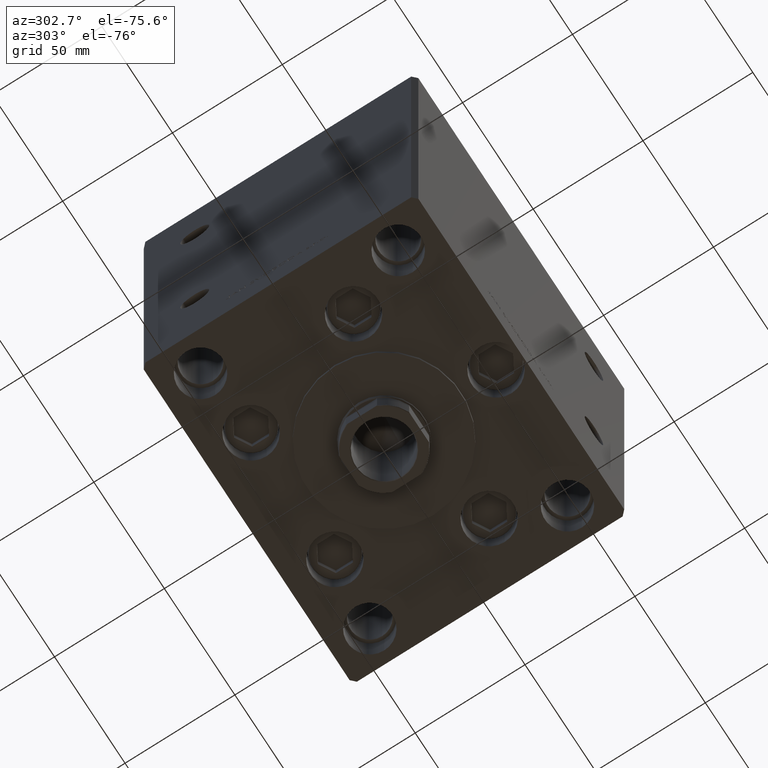
[diagram: clean part render]
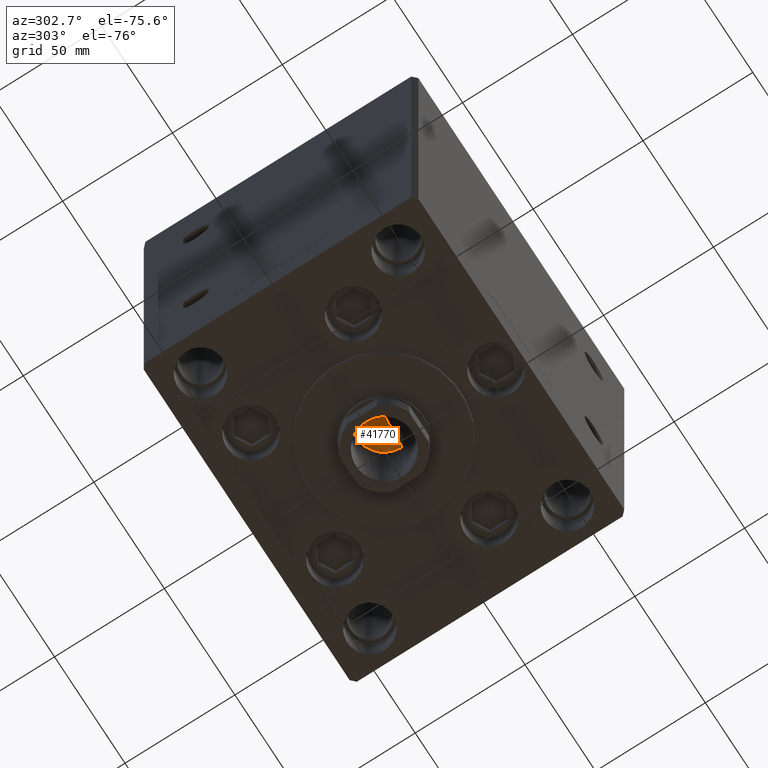
[diagram: same view with one face highlighted and labeled with its STEP entity id]
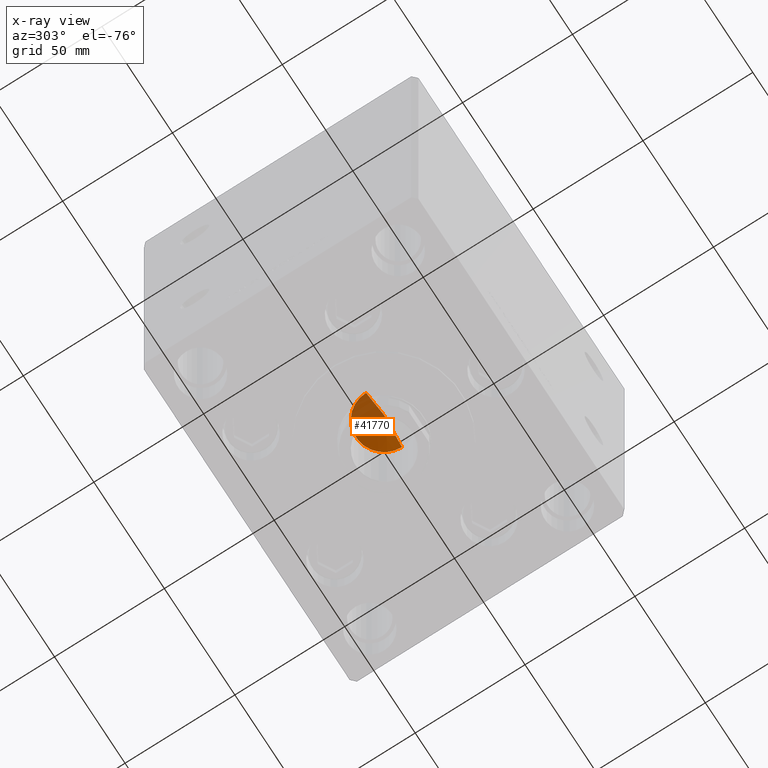
[diagram: x-ray of the same camera — body ghosted, the highlighted face saturated]
A machine part, auxiliary view. The second image highlights one B-rep face of the part: STEP entity #41770.
The next image is the same camera in x-ray: the body ghosted, the highlighted face saturated — about 38% of this face is hidden behind the body in this view.
In plain terms, the highlighted conical surface has half-angle 59 deg.
Its self-contained STEP definition (entity closure, byte-faithful):
#46 = CARTESIAN_POINT ( 'NONE',  ( 12.74999999999999112, 0.000000000000000000, 122.5000000000000142 ) ) ;
#4188 = DIRECTION ( 'NONE',  ( -0.000000000000000000, -0.000000000000000000, 1.000000000000000000 ) ) ;
#4513 = AXIS2_PLACEMENT_3D ( 'NONE', #19553, #46761, #46259 ) ;
#7350 = CARTESIAN_POINT ( 'NONE',  ( -1.307202896762960287E-14, 0.000000000000000000, 114.8390271073986071 ) ) ;
#7768 = CONICAL_SURFACE ( 'NONE', #4513, 12.74999999999999112, 1.029744258676653423 ) ;
#9702 = DIRECTION ( 'NONE',  ( -0.8571673007021117785, 1.049727191138617956E-16, 0.5150380749100550437 ) ) ;
#9959 = CARTESIAN_POINT ( 'NONE',  ( -12.74999999999999112, 1.561424668912874125E-15, 122.5000000000000142 ) ) ;
#12161 = FACE_OUTER_BOUND ( 'NONE', #25935, .T. ) ;
#14951 = VECTOR ( 'NONE', #9702, 1000.000000000000000 ) ;
#14985 = ORIENTED_EDGE ( 'NONE', *, *, #37591, .F. ) ;
#17960 = ORIENTED_EDGE ( 'NONE', *, *, #48334, .T. ) ;
#18431 = CIRCLE ( 'NONE', #46056, 12.74999999999999112 ) ;
#19553 = CARTESIAN_POINT ( 'NONE',  ( 0.000000000000000000, 0.000000000000000000, 122.5000000000000142 ) ) ;
#19782 = CARTESIAN_POINT ( 'NONE',  ( 12.74999999999999112, 0.000000000000000000, 122.5000000000000142 ) ) ;
#21375 = ORIENTED_EDGE ( 'NONE', *, *, #28013, .T. ) ;
#21404 = LINE ( 'NONE', #9959, #14951 ) ;
#22878 = VECTOR ( 'NONE', #23442, 1000.000000000000000 ) ;
#23442 = DIRECTION ( 'NONE',  ( 0.8571673007021117785, 0.000000000000000000, 0.5150380749100550437 ) ) ;
#23762 = CARTESIAN_POINT ( 'NONE',  ( 0.000000000000000000, 0.000000000000000000, 122.5000000000000142 ) ) ;
#24136 = VERTEX_POINT ( 'NONE', #7350 ) ;
#24254 = DIRECTION ( 'NONE',  ( 1.000000000000000000, 0.000000000000000000, 0.000000000000000000 ) ) ;
#25935 = EDGE_LOOP ( 'NONE', ( #14985, #21375, #17960 ) ) ;
#28013 = EDGE_CURVE ( 'NONE', #24136, #40089, #34887, .T. ) ;
#28809 = CARTESIAN_POINT ( 'NONE',  ( -12.74999999999999112, 1.561424668912874125E-15, 122.5000000000000142 ) ) ;
#34887 = LINE ( 'NONE', #46, #22878 ) ;
#37591 = EDGE_CURVE ( 'NONE', #24136, #45604, #21404, .T. ) ;
#40089 = VERTEX_POINT ( 'NONE', #19782 ) ;
#41770 = ADVANCED_FACE ( 'NONE', ( #12161 ), #7768, .F. ) ;
#45604 = VERTEX_POINT ( 'NONE', #28809 ) ;
#46056 = AXIS2_PLACEMENT_3D ( 'NONE', #23762, #4188, #24254 ) ;
#46259 = DIRECTION ( 'NONE',  ( 1.000000000000000000, 0.000000000000000000, 0.000000000000000000 ) ) ;
#46761 = DIRECTION ( 'NONE',  ( -0.000000000000000000, -0.000000000000000000, 1.000000000000000000 ) ) ;
#48334 = EDGE_CURVE ( 'NONE', #40089, #45604, #18431, .T. ) ;